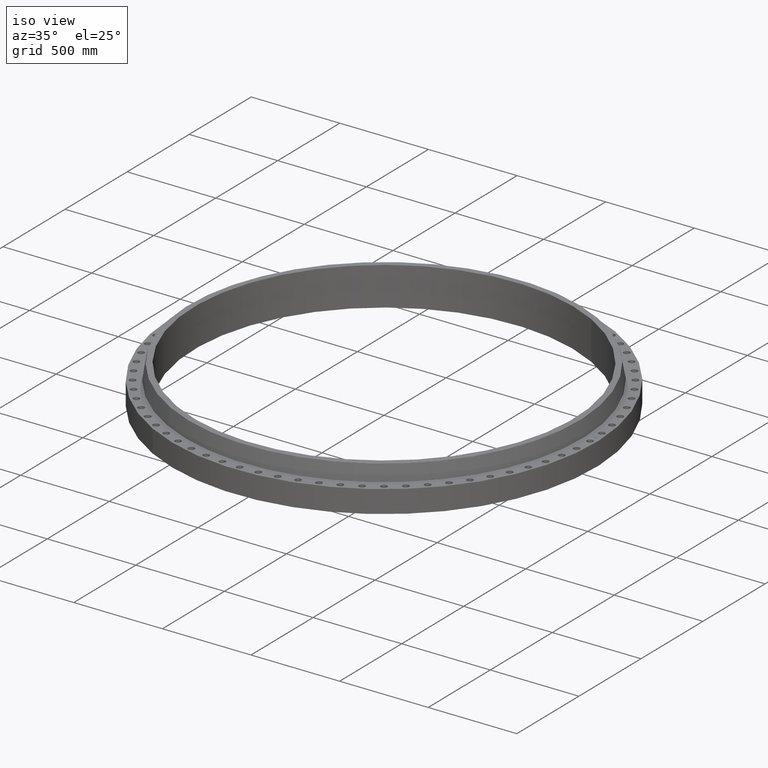
[diagram: clean part render]
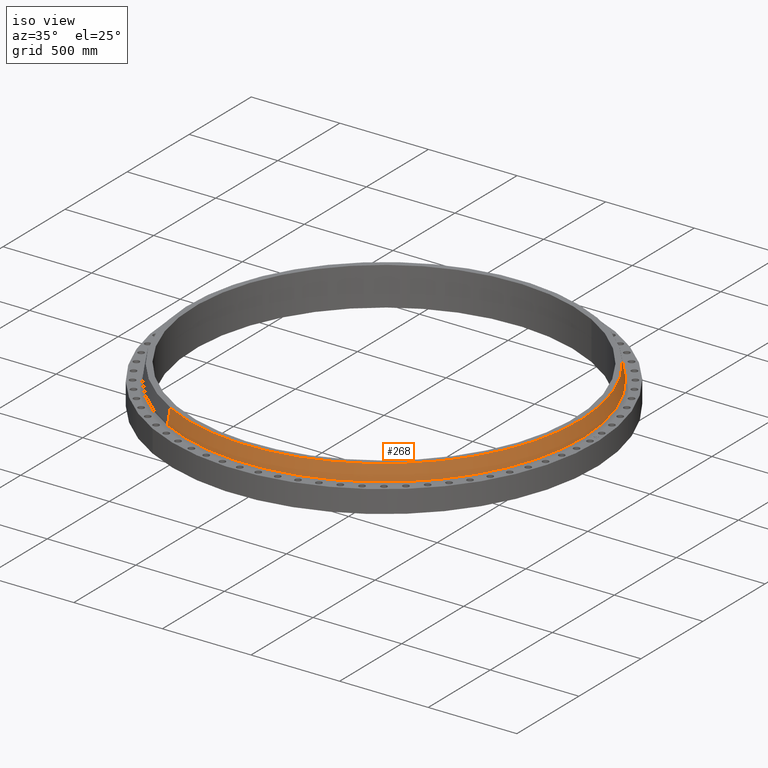
[diagram: same view with one face highlighted and labeled with its STEP entity id]
A machine part, iso view. The second image highlights one B-rep face of the part: STEP entity #268.
In plain terms, the highlighted conical surface has half-angle 10 deg.
Its self-contained STEP definition (entity closure, byte-faithful):
#204=AXIS2_PLACEMENT_3D('Circle Axis2P3D',#202,#203,$) ;
#241=AXIS2_PLACEMENT_3D('Cone Axis2P3D',#238,#239,#240) ;
#252=AXIS2_PLACEMENT_3D('Circle Axis2P3D',#250,#251,$) ;
#199=CARTESIAN_POINT('Vertex',(21.090532327,38.6059604689,5.04958110936)) ;
#202=CARTESIAN_POINT('Axis2P3D Location',(0.,0.,5.04958110936)) ;
#206=CARTESIAN_POINT('Vertex',(-21.090532327,-38.6059604689,5.04958110936)) ;
#238=CARTESIAN_POINT('Axis2P3D Location',(0.,0.,8.45041889069)) ;
#243=CARTESIAN_POINT('Line Origine',(20.9467862977,38.3428351273,6.75000000003)) ;
#247=CARTESIAN_POINT('Vertex',(20.8030402684,38.0797097856,8.45041889069)) ;
#250=CARTESIAN_POINT('Axis2P3D Location',(0.,0.,8.45041889069)) ;
#254=CARTESIAN_POINT('Vertex',(-20.8030402684,-38.0797097856,8.45041889069)) ;
#257=CARTESIAN_POINT('Line Origine',(-20.9467862977,-38.3428351273,6.75000000003)) ;
#203=DIRECTION('Axis2P3D Direction',(0.,0.,-0.0393700787402)) ;
#239=DIRECTION('Axis2P3D Direction',(0.,0.,-0.0393700787402)) ;
#240=DIRECTION('Axis2P3D XDirection',(-0.0188750212049,-0.0345504945626,0.)) ;
#244=DIRECTION('Vector Direction',(0.00327761303565,0.00599963041829,-0.03877195878)) ;
#251=DIRECTION('Axis2P3D Direction',(0.,0.,-0.0393700787402)) ;
#258=DIRECTION('Vector Direction',(-0.00327761303565,-0.00599963041829,-0.03877195878)) ;
#245=VECTOR('Line Direction',#244,0.0393700787402) ;
#259=VECTOR('Line Direction',#258,0.0393700787402) ;
#263=ORIENTED_EDGE('',*,*,#208,.F.) ;
#264=ORIENTED_EDGE('',*,*,#249,.T.) ;
#265=ORIENTED_EDGE('',*,*,#256,.T.) ;
#266=ORIENTED_EDGE('',*,*,#261,.F.) ;
#268=ADVANCED_FACE('PartBody',(#267),#242,.T.) ;
#205=CIRCLE('generated circle',#204,43.9912575129) ;
#253=CIRCLE('generated circle',#252,43.391598055) ;
#242=CONICAL_SURFACE('Cone',#241,43.391598055,0.174532925199) ;
#208=EDGE_CURVE('',#200,#207,#205,.T.) ;
#249=EDGE_CURVE('',#200,#248,#246,.F.) ;
#256=EDGE_CURVE('',#248,#255,#253,.T.) ;
#261=EDGE_CURVE('',#207,#255,#260,.F.) ;
#262=EDGE_LOOP('',(#263,#264,#265,#266)) ;
#267=FACE_OUTER_BOUND('',#262,.T.) ;
#246=LINE('Line',#243,#245) ;
#260=LINE('Line',#257,#259) ;
#200=VERTEX_POINT('',#199) ;
#207=VERTEX_POINT('',#206) ;
#248=VERTEX_POINT('',#247) ;
#255=VERTEX_POINT('',#254) ;